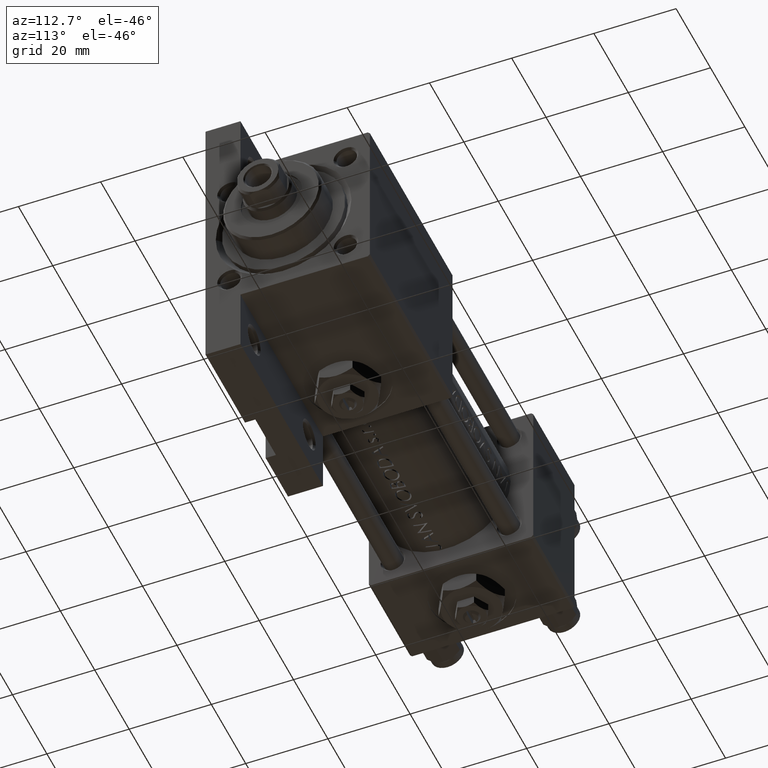
[diagram: clean part render]
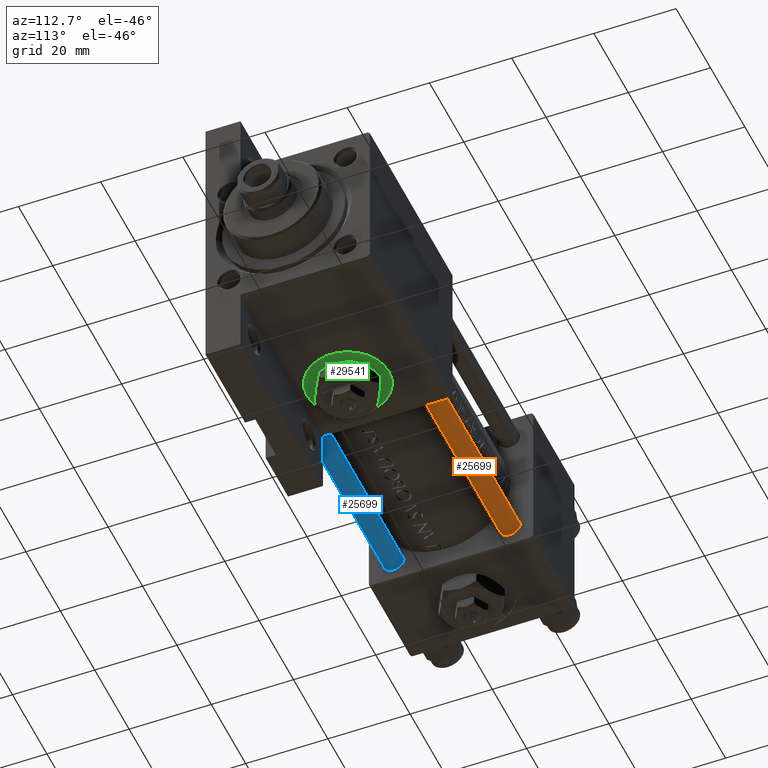
[diagram: same view with three faces highlighted in distinct colors, each labeled with its STEP entity id]
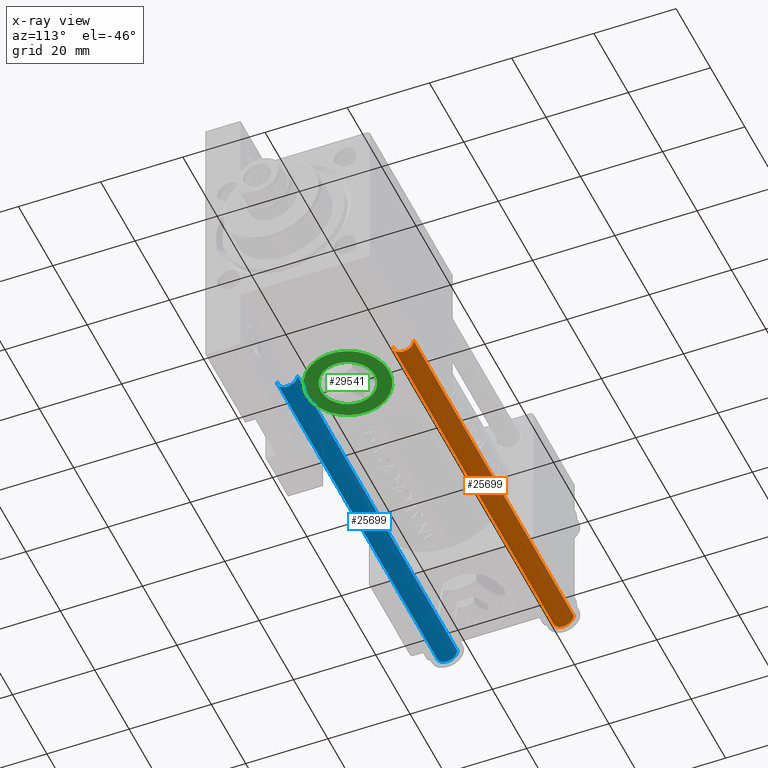
[diagram: x-ray of the same camera — body ghosted, the three highlighted faces saturated]
A machine part, auxiliary view with three faces highlighted in distinct colors.
The next image is the same camera in x-ray (body ghosted, the three faces saturated) — at least one of them is partly hidden behind the body in this view.
Their STEP definitions:

[orange] entity #25699 — the highlighted cylindrical surface (edge-blend (fillet) strip) has radius 2.5 mm, axis along (-1, -0, 0).
#787 = ORIENTED_EDGE ( 'NONE', *, *, #28183, .T. ) ;
#2731 = ORIENTED_EDGE ( 'NONE', *, *, #38510, .T. ) ;
#4735 = AXIS2_PLACEMENT_3D ( 'NONE', #17371, #43692, #31934 ) ;
#4759 = VERTEX_POINT ( 'NONE', #43426 ) ;
#5178 = EDGE_CURVE ( 'NONE', #4759, #32159, #47871, .T. ) ;
#5298 = DIRECTION ( 'NONE',  ( -0.000000000000000000, -0.000000000000000000, -1.000000000000000000 ) ) ;
#6183 = CARTESIAN_POINT ( 'NONE',  ( 2.500000000000000000, 3.061616997868383141E-16, 0.5000000000000004441 ) ) ;
#6763 = DIRECTION ( 'NONE',  ( 1.000000000000000000, 0.000000000000000000, 0.000000000000000000 ) ) ;
#11280 = CARTESIAN_POINT ( 'NONE',  ( 0.000000000000000000, 0.000000000000000000, 93.50000000000001421 ) ) ;
#11571 = VECTOR ( 'NONE', #28342, 1000.000000000000000 ) ;
#11696 = CARTESIAN_POINT ( 'NONE',  ( -2.500000000000000000, 0.000000000000000000, 0.5000000000000004441 ) ) ;
#12250 = CIRCLE ( 'NONE', #18656, 2.500000000000000000 ) ;
#12497 = EDGE_CURVE ( 'NONE', #26501, #32159, #39041, .T. ) ;
#13842 = DIRECTION ( 'NONE',  ( -1.000000000000000000, 0.000000000000000000, 0.000000000000000000 ) ) ;
#14867 = LINE ( 'NONE', #18356, #47764 ) ;
#17371 = CARTESIAN_POINT ( 'NONE',  ( 0.000000000000000000, 0.000000000000000000, 0.5000000000000004441 ) ) ;
#18356 = CARTESIAN_POINT ( 'NONE',  ( -2.500000000000000000, 0.000000000000000000, 94.00000000000000000 ) ) ;
#18656 = AXIS2_PLACEMENT_3D ( 'NONE', #11280, #26578, #6763 ) ;
#18829 = CARTESIAN_POINT ( 'NONE',  ( -2.500000000000000000, 0.000000000000000000, 93.50000000000001421 ) ) ;
#22410 = EDGE_LOOP ( 'NONE', ( #27472, #787, #2731, #34412 ) ) ;
#24383 = CARTESIAN_POINT ( 'NONE',  ( 0.000000000000000000, 0.000000000000000000, 94.00000000000000000 ) ) ;
#24630 = CYLINDRICAL_SURFACE ( 'NONE', #35407, 2.500000000000000000 ) ;
#24879 = FACE_OUTER_BOUND ( 'NONE', #22410, .T. ) ;
#25699 = ADVANCED_FACE ( 'NONE', ( #24879 ), #24630, .T. ) ;
#26501 = VERTEX_POINT ( 'NONE', #11696 ) ;
#26578 = DIRECTION ( 'NONE',  ( 0.000000000000000000, 0.000000000000000000, -1.000000000000000000 ) ) ;
#27472 = ORIENTED_EDGE ( 'NONE', *, *, #5178, .F. ) ;
#28183 = EDGE_CURVE ( 'NONE', #4759, #44936, #12250, .T. ) ;
#28342 = DIRECTION ( 'NONE',  ( -0.000000000000000000, -0.000000000000000000, -1.000000000000000000 ) ) ;
#28844 = CARTESIAN_POINT ( 'NONE',  ( 2.500000000000000000, 3.061616997868383141E-16, 94.00000000000000000 ) ) ;
#31934 = DIRECTION ( 'NONE',  ( 1.000000000000000000, 0.000000000000000000, 0.000000000000000000 ) ) ;
#32159 = VERTEX_POINT ( 'NONE', #6183 ) ;
#34412 = ORIENTED_EDGE ( 'NONE', *, *, #12497, .T. ) ;
#35407 = AXIS2_PLACEMENT_3D ( 'NONE', #24383, #5298, #13842 ) ;
#38510 = EDGE_CURVE ( 'NONE', #44936, #26501, #14867, .T. ) ;
#39041 = CIRCLE ( 'NONE', #4735, 2.500000000000000000 ) ;
#43426 = CARTESIAN_POINT ( 'NONE',  ( 2.500000000000000000, 3.061616997868383141E-16, 93.50000000000001421 ) ) ;
#43692 = DIRECTION ( 'NONE',  ( -0.000000000000000000, -0.000000000000000000, 1.000000000000000000 ) ) ;
#44936 = VERTEX_POINT ( 'NONE', #18829 ) ;
#47764 = VECTOR ( 'NONE', #49443, 1000.000000000000000 ) ;
#47871 = LINE ( 'NONE', #28844, #11571 ) ;
#49443 = DIRECTION ( 'NONE',  ( -0.000000000000000000, -0.000000000000000000, -1.000000000000000000 ) ) ;

[blue] entity #25699 — the highlighted cylindrical surface (edge-blend (fillet) strip) has radius 2.5 mm, axis along (1, 0, 0).
#787 = ORIENTED_EDGE ( 'NONE', *, *, #28183, .T. ) ;
#2731 = ORIENTED_EDGE ( 'NONE', *, *, #38510, .T. ) ;
#4735 = AXIS2_PLACEMENT_3D ( 'NONE', #17371, #43692, #31934 ) ;
#4759 = VERTEX_POINT ( 'NONE', #43426 ) ;
#5178 = EDGE_CURVE ( 'NONE', #4759, #32159, #47871, .T. ) ;
#5298 = DIRECTION ( 'NONE',  ( -0.000000000000000000, -0.000000000000000000, -1.000000000000000000 ) ) ;
#6183 = CARTESIAN_POINT ( 'NONE',  ( 2.500000000000000000, 3.061616997868383141E-16, 0.5000000000000004441 ) ) ;
#6763 = DIRECTION ( 'NONE',  ( 1.000000000000000000, 0.000000000000000000, 0.000000000000000000 ) ) ;
#11280 = CARTESIAN_POINT ( 'NONE',  ( 0.000000000000000000, 0.000000000000000000, 93.50000000000001421 ) ) ;
#11571 = VECTOR ( 'NONE', #28342, 1000.000000000000000 ) ;
#11696 = CARTESIAN_POINT ( 'NONE',  ( -2.500000000000000000, 0.000000000000000000, 0.5000000000000004441 ) ) ;
#12250 = CIRCLE ( 'NONE', #18656, 2.500000000000000000 ) ;
#12497 = EDGE_CURVE ( 'NONE', #26501, #32159, #39041, .T. ) ;
#13842 = DIRECTION ( 'NONE',  ( -1.000000000000000000, 0.000000000000000000, 0.000000000000000000 ) ) ;
#14867 = LINE ( 'NONE', #18356, #47764 ) ;
#17371 = CARTESIAN_POINT ( 'NONE',  ( 0.000000000000000000, 0.000000000000000000, 0.5000000000000004441 ) ) ;
#18356 = CARTESIAN_POINT ( 'NONE',  ( -2.500000000000000000, 0.000000000000000000, 94.00000000000000000 ) ) ;
#18656 = AXIS2_PLACEMENT_3D ( 'NONE', #11280, #26578, #6763 ) ;
#18829 = CARTESIAN_POINT ( 'NONE',  ( -2.500000000000000000, 0.000000000000000000, 93.50000000000001421 ) ) ;
#22410 = EDGE_LOOP ( 'NONE', ( #27472, #787, #2731, #34412 ) ) ;
#24383 = CARTESIAN_POINT ( 'NONE',  ( 0.000000000000000000, 0.000000000000000000, 94.00000000000000000 ) ) ;
#24630 = CYLINDRICAL_SURFACE ( 'NONE', #35407, 2.500000000000000000 ) ;
#24879 = FACE_OUTER_BOUND ( 'NONE', #22410, .T. ) ;
#25699 = ADVANCED_FACE ( 'NONE', ( #24879 ), #24630, .T. ) ;
#26501 = VERTEX_POINT ( 'NONE', #11696 ) ;
#26578 = DIRECTION ( 'NONE',  ( 0.000000000000000000, 0.000000000000000000, -1.000000000000000000 ) ) ;
#27472 = ORIENTED_EDGE ( 'NONE', *, *, #5178, .F. ) ;
#28183 = EDGE_CURVE ( 'NONE', #4759, #44936, #12250, .T. ) ;
#28342 = DIRECTION ( 'NONE',  ( -0.000000000000000000, -0.000000000000000000, -1.000000000000000000 ) ) ;
#28844 = CARTESIAN_POINT ( 'NONE',  ( 2.500000000000000000, 3.061616997868383141E-16, 94.00000000000000000 ) ) ;
#31934 = DIRECTION ( 'NONE',  ( 1.000000000000000000, 0.000000000000000000, 0.000000000000000000 ) ) ;
#32159 = VERTEX_POINT ( 'NONE', #6183 ) ;
#34412 = ORIENTED_EDGE ( 'NONE', *, *, #12497, .T. ) ;
#35407 = AXIS2_PLACEMENT_3D ( 'NONE', #24383, #5298, #13842 ) ;
#38510 = EDGE_CURVE ( 'NONE', #44936, #26501, #14867, .T. ) ;
#39041 = CIRCLE ( 'NONE', #4735, 2.500000000000000000 ) ;
#43426 = CARTESIAN_POINT ( 'NONE',  ( 2.500000000000000000, 3.061616997868383141E-16, 93.50000000000001421 ) ) ;
#43692 = DIRECTION ( 'NONE',  ( -0.000000000000000000, -0.000000000000000000, 1.000000000000000000 ) ) ;
#44936 = VERTEX_POINT ( 'NONE', #18829 ) ;
#47764 = VECTOR ( 'NONE', #49443, 1000.000000000000000 ) ;
#47871 = LINE ( 'NONE', #28844, #11571 ) ;
#49443 = DIRECTION ( 'NONE',  ( -0.000000000000000000, -0.000000000000000000, -1.000000000000000000 ) ) ;

[green] entity #29541 — the highlighted planar face has unit normal (0, 0, -1).
#165 = ORIENTED_EDGE ( 'NONE', *, *, #14954, .F. ) ;
#1442 = PLANE ( 'NONE',  #33986 ) ;
#4958 = DIRECTION ( 'NONE',  ( 0.000000000000000000, 1.000000000000000000, 0.000000000000000000 ) ) ;
#5271 = CIRCLE ( 'NONE', #40497, 6.580000000001541061 ) ;
#5370 = DIRECTION ( 'NONE',  ( 0.000000000000000000, 0.000000000000000000, 1.000000000000000000 ) ) ;
#8046 = AXIS2_PLACEMENT_3D ( 'NONE', #10397, #39694, #5370 ) ;
#8224 = EDGE_LOOP ( 'NONE', ( #165, #13444 ) ) ;
#8608 = DIRECTION ( 'NONE',  ( 0.000000000000000000, 0.000000000000000000, 1.000000000000000000 ) ) ;
#10397 = CARTESIAN_POINT ( 'NONE',  ( 84.00000000000000000, 19.79999999999999716, 0.000000000000000000 ) ) ;
#11875 = DIRECTION ( 'NONE',  ( 0.000000000000000000, 1.000000000000000000, 0.000000000000000000 ) ) ;
#13256 = DIRECTION ( 'NONE',  ( 0.000000000000000000, 1.000000000000000000, 0.000000000000000000 ) ) ;
#13444 = ORIENTED_EDGE ( 'NONE', *, *, #37730, .F. ) ;
#14954 = EDGE_CURVE ( 'NONE', #37974, #20997, #39930, .T. ) ;
#16764 = DIRECTION ( 'NONE',  ( 0.000000000000000000, -0.000000000000000000, 1.000000000000000000 ) ) ;
#17926 = EDGE_CURVE ( 'NONE', #27511, #33830, #25659, .T. ) ;
#20997 = VERTEX_POINT ( 'NONE', #47155 ) ;
#21551 = ORIENTED_EDGE ( 'NONE', *, *, #17926, .T. ) ;
#22867 = DIRECTION ( 'NONE',  ( 0.000000000000000000, 0.000000000000000000, 1.000000000000000000 ) ) ;
#23988 = AXIS2_PLACEMENT_3D ( 'NONE', #38921, #11875, #8608 ) ;
#24787 = CARTESIAN_POINT ( 'NONE',  ( 84.00000000000000000, 19.79999999999999716, 0.000000000000000000 ) ) ;
#25659 = CIRCLE ( 'NONE', #8046, 10.00000000000153300 ) ;
#26104 = EDGE_CURVE ( 'NONE', #33830, #27511, #49047, .T. ) ;
#27444 = AXIS2_PLACEMENT_3D ( 'NONE', #31125, #42393, #22867 ) ;
#27511 = VERTEX_POINT ( 'NONE', #38801 ) ;
#28072 = CARTESIAN_POINT ( 'NONE',  ( 84.00000000000000000, 19.79999999999999716, 0.000000000000000000 ) ) ;
#29541 = ADVANCED_FACE ( 'NONE', ( #47596, #43344 ), #1442, .T. ) ;
#31125 = CARTESIAN_POINT ( 'NONE',  ( 84.00000000000000000, 19.79999999999999716, 0.000000000000000000 ) ) ;
#32528 = EDGE_LOOP ( 'NONE', ( #47414, #21551 ) ) ;
#33652 = CARTESIAN_POINT ( 'NONE',  ( 84.00000000000000000, 19.79999999999999716, 10.00000000000153300 ) ) ;
#33830 = VERTEX_POINT ( 'NONE', #33652 ) ;
#33986 = AXIS2_PLACEMENT_3D ( 'NONE', #28072, #13256, #16764 ) ;
#34276 = CARTESIAN_POINT ( 'NONE',  ( 84.00000000000000000, 19.79999999999999716, 6.580000000001541061 ) ) ;
#37730 = EDGE_CURVE ( 'NONE', #20997, #37974, #5271, .T. ) ;
#37974 = VERTEX_POINT ( 'NONE', #34276 ) ;
#38801 = CARTESIAN_POINT ( 'NONE',  ( 84.00000000000000000, 19.79999999999999716, -10.00000000000153300 ) ) ;
#38921 = CARTESIAN_POINT ( 'NONE',  ( 84.00000000000000000, 19.79999999999999716, 0.000000000000000000 ) ) ;
#39694 = DIRECTION ( 'NONE',  ( 0.000000000000000000, 1.000000000000000000, 0.000000000000000000 ) ) ;
#39930 = CIRCLE ( 'NONE', #23988, 6.580000000001541061 ) ;
#40292 = DIRECTION ( 'NONE',  ( 0.000000000000000000, 0.000000000000000000, 1.000000000000000000 ) ) ;
#40497 = AXIS2_PLACEMENT_3D ( 'NONE', #24787, #4958, #40292 ) ;
#42393 = DIRECTION ( 'NONE',  ( 0.000000000000000000, 1.000000000000000000, 0.000000000000000000 ) ) ;
#43344 = FACE_OUTER_BOUND ( 'NONE', #32528, .T. ) ;
#47155 = CARTESIAN_POINT ( 'NONE',  ( 84.00000000000000000, 19.79999999999999716, -6.580000000001541061 ) ) ;
#47414 = ORIENTED_EDGE ( 'NONE', *, *, #26104, .T. ) ;
#47596 = FACE_BOUND ( 'NONE', #8224, .T. ) ;
#49047 = CIRCLE ( 'NONE', #27444, 10.00000000000153300 ) ;